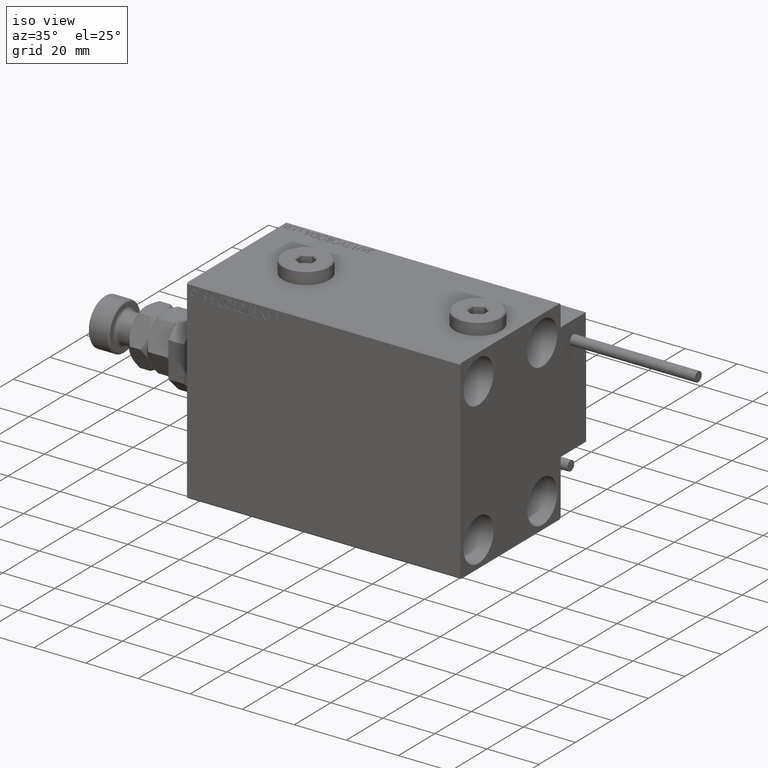
[diagram: clean part render]
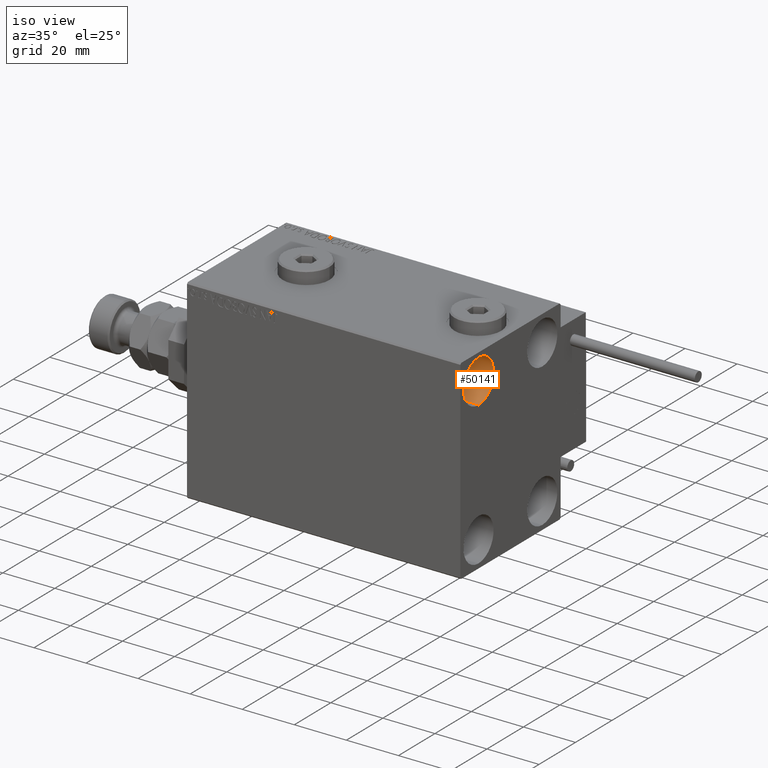
[diagram: same view with one face highlighted and labeled with its STEP entity id]
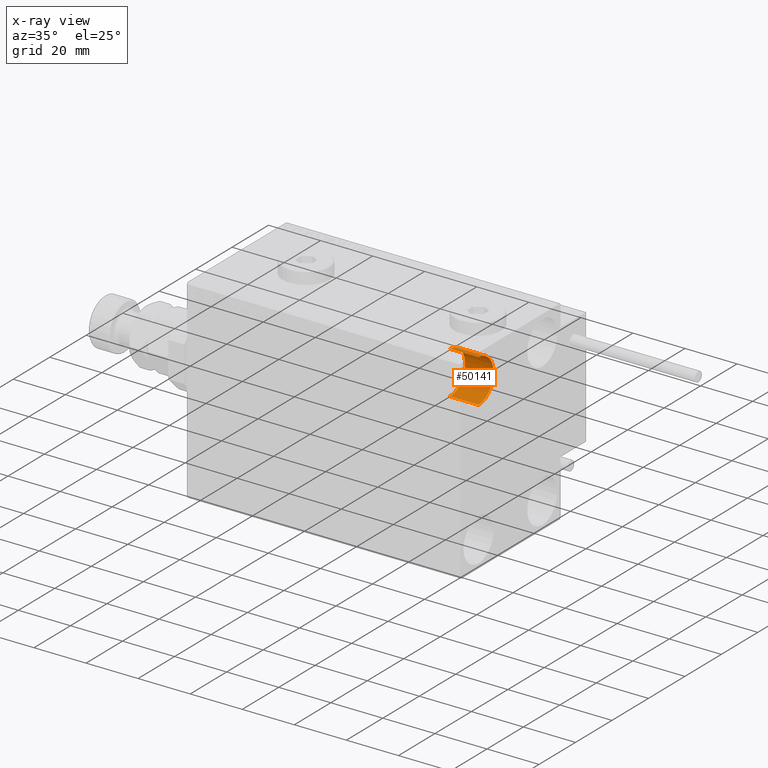
[diagram: x-ray of the same camera — body ghosted, the highlighted face saturated]
A machine part, iso view. The second image highlights one B-rep face of the part: STEP entity #50141.
The next image is the same camera in x-ray: the body ghosted, the highlighted face saturated — about 0% of this face is hidden behind the body in this view.
In plain terms, the highlighted cylindrical surface (edge-blend (fillet) strip) has radius 8.25 mm, axis along (1, 0, 0).
Its self-contained STEP definition (entity closure, byte-faithful):
#96 = CARTESIAN_POINT ( 'NONE',  ( 94.00000000000000000, -17.49999999999999645, 35.74999999999999289 ) ) ;
#264 = DIRECTION ( 'NONE',  ( -1.000000000000000000, -0.000000000000000000, -0.000000000000000000 ) ) ;
#2913 = FACE_OUTER_BOUND ( 'NONE', #23431, .T. ) ;
#5245 = DIRECTION ( 'NONE',  ( 0.000000000000000000, 0.000000000000000000, 1.000000000000000000 ) ) ;
#6310 = DIRECTION ( 'NONE',  ( -1.000000000000000000, -0.000000000000000000, -0.000000000000000000 ) ) ;
#6678 = CYLINDRICAL_SURFACE ( 'NONE', #12451, 8.249999999999996447 ) ;
#8928 = AXIS2_PLACEMENT_3D ( 'NONE', #14124, #6310, #5245 ) ;
#9270 = ORIENTED_EDGE ( 'NONE', *, *, #47028, .F. ) ;
#10188 = DIRECTION ( 'NONE',  ( 1.000000000000000000, -0.000000000000000000, -0.000000000000000000 ) ) ;
#11603 = EDGE_CURVE ( 'NONE', #28496, #23827, #39835, .T. ) ;
#12451 = AXIS2_PLACEMENT_3D ( 'NONE', #26863, #10188, #19055 ) ;
#13294 = LINE ( 'NONE', #42061, #14184 ) ;
#14124 = CARTESIAN_POINT ( 'NONE',  ( 94.00000000000000000, -17.49999999999999645, 27.49999999999999645 ) ) ;
#14184 = VECTOR ( 'NONE', #34523, 1000.000000000000000 ) ;
#14291 = EDGE_CURVE ( 'NONE', #23827, #22696, #13294, .T. ) ;
#15468 = DIRECTION ( 'NONE',  ( 1.000000000000000000, -0.000000000000000000, -0.000000000000000000 ) ) ;
#16428 = DIRECTION ( 'NONE',  ( 0.000000000000000000, 0.000000000000000000, 1.000000000000000000 ) ) ;
#19055 = DIRECTION ( 'NONE',  ( 0.000000000000000000, 0.000000000000000000, -1.000000000000000000 ) ) ;
#22696 = VERTEX_POINT ( 'NONE', #51489 ) ;
#23431 = EDGE_LOOP ( 'NONE', ( #9270, #50852, #41333, #47490 ) ) ;
#23827 = VERTEX_POINT ( 'NONE', #39624 ) ;
#25428 = VERTEX_POINT ( 'NONE', #34621 ) ;
#26811 = CIRCLE ( 'NONE', #31958, 8.249999999999992895 ) ;
#26863 = CARTESIAN_POINT ( 'NONE',  ( 94.00000000000000000, -17.49999999999999645, 27.49999999999999645 ) ) ;
#28496 = VERTEX_POINT ( 'NONE', #51742 ) ;
#28815 = VECTOR ( 'NONE', #15468, 1000.000000000000000 ) ;
#31958 = AXIS2_PLACEMENT_3D ( 'NONE', #48702, #264, #16428 ) ;
#34523 = DIRECTION ( 'NONE',  ( 1.000000000000000000, -0.000000000000000000, -0.000000000000000000 ) ) ;
#34621 = CARTESIAN_POINT ( 'NONE',  ( 105.0000000000000000, -17.49999999999999645, 35.74999999999999289 ) ) ;
#36439 = LINE ( 'NONE', #96, #28815 ) ;
#39624 = CARTESIAN_POINT ( 'NONE',  ( 94.00000000000000000, -17.49999999999999645, 19.25000000000000000 ) ) ;
#39835 = CIRCLE ( 'NONE', #8928, 8.249999999999992895 ) ;
#40141 = EDGE_CURVE ( 'NONE', #25428, #22696, #26811, .T. ) ;
#41333 = ORIENTED_EDGE ( 'NONE', *, *, #14291, .T. ) ;
#42061 = CARTESIAN_POINT ( 'NONE',  ( 94.00000000000000000, -17.49999999999999645, 19.25000000000000000 ) ) ;
#47028 = EDGE_CURVE ( 'NONE', #28496, #25428, #36439, .T. ) ;
#47490 = ORIENTED_EDGE ( 'NONE', *, *, #40141, .F. ) ;
#48702 = CARTESIAN_POINT ( 'NONE',  ( 105.0000000000000000, -17.49999999999999645, 27.49999999999999645 ) ) ;
#50141 = ADVANCED_FACE ( 'NONE', ( #2913 ), #6678, .F. ) ;
#50852 = ORIENTED_EDGE ( 'NONE', *, *, #11603, .T. ) ;
#51489 = CARTESIAN_POINT ( 'NONE',  ( 105.0000000000000000, -17.49999999999999645, 19.25000000000000000 ) ) ;
#51742 = CARTESIAN_POINT ( 'NONE',  ( 94.00000000000000000, -17.49999999999999645, 35.74999999999999289 ) ) ;